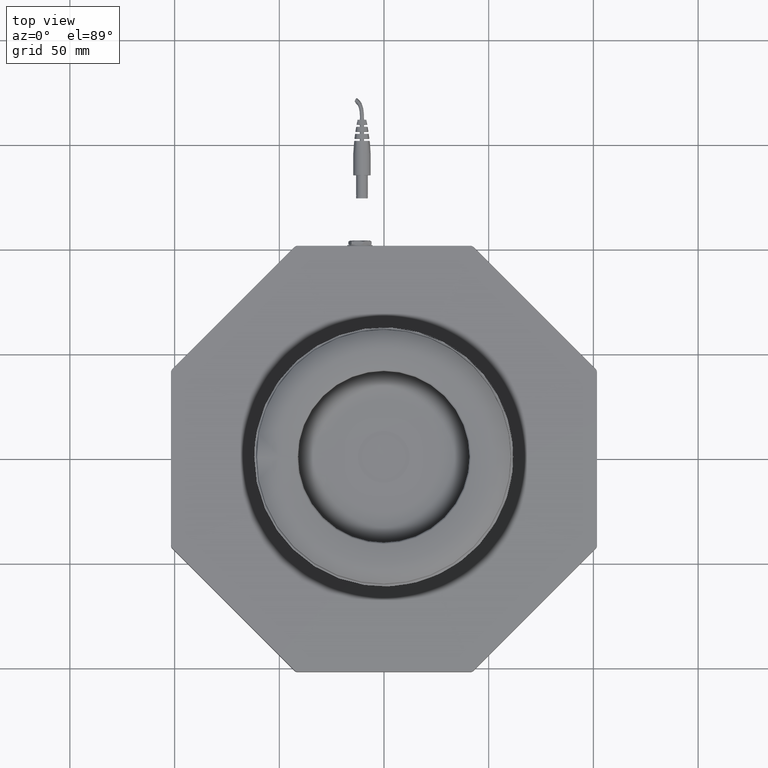
[diagram: clean part render]
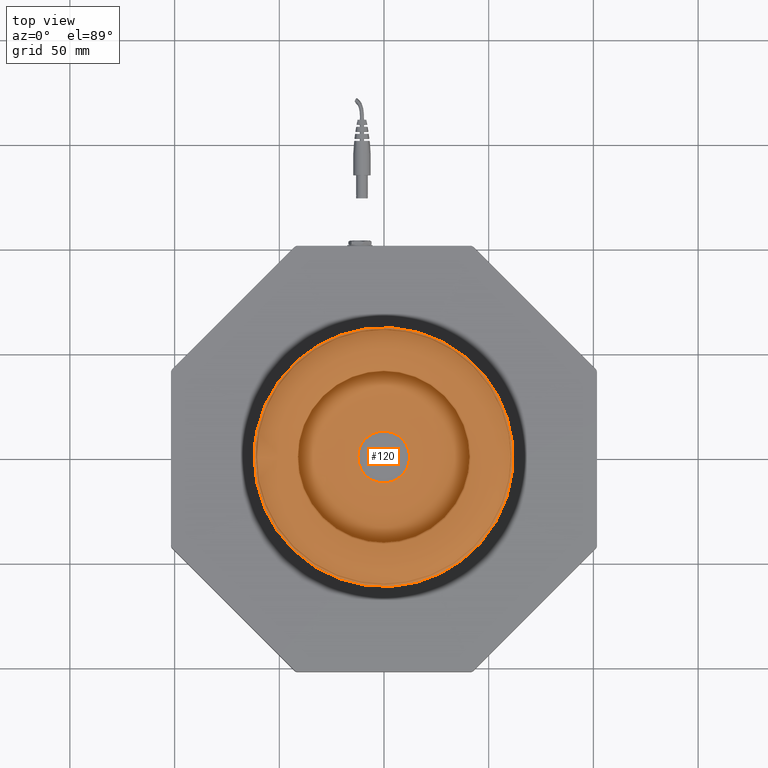
[diagram: same view with one face highlighted and labeled with its STEP entity id]
A machine part, top view. The second image highlights one B-rep face of the part: STEP entity #120.
In plain terms, the highlighted face is a freeform B-spline surface patch.
Its self-contained STEP definition (entity closure, byte-faithful):
#120=ADVANCED_FACE('',(#254),#2074,.T.);
#254=FACE_OUTER_BOUND('',#388,.T.);
#388=EDGE_LOOP('',(#558,#559,#560,#561));
#558=ORIENTED_EDGE('',*,*,#1189,.F.);
#559=ORIENTED_EDGE('',*,*,#1204,.T.);
#560=ORIENTED_EDGE('',*,*,#1189,.T.);
#561=ORIENTED_EDGE('',*,*,#1205,.F.);
#1189=EDGE_CURVE('',#1855,#1854,#1608,.T.);
#1204=EDGE_CURVE('',#1855,#1855,#1524,.T.);
#1205=EDGE_CURVE('',#1854,#1854,#1525,.T.);
#1524=(
BOUNDED_CURVE()
B_SPLINE_CURVE(2,(#3135,#3136,#3137,#3138,#3139,#3140,#3141,#3142,#3143),
 .UNSPECIFIED.,.T.,.F.)
B_SPLINE_CURVE_WITH_KNOTS((3,2,2,2,3),(0.,97.1617778100464,194.323555620093,
291.485333430139,388.647111240186),.UNSPECIFIED.)
CURVE()
GEOMETRIC_REPRESENTATION_ITEM()
RATIONAL_B_SPLINE_CURVE((1.,0.707106781186548,1.,0.707106781186548,1.,0.707106781186548,
1.,0.707106781186548,1.))
REPRESENTATION_ITEM('')
);
#1525=(
BOUNDED_CURVE()
B_SPLINE_CURVE(2,(#3144,#3145,#3146,#3147,#3148,#3149,#3150,#3151,#3152),
 .UNSPECIFIED.,.T.,.F.)
B_SPLINE_CURVE_WITH_KNOTS((3,2,2,2,3),(0.,97.1617778100464,194.323555620093,
291.485333430139,388.647111240186),.UNSPECIFIED.)
CURVE()
GEOMETRIC_REPRESENTATION_ITEM()
RATIONAL_B_SPLINE_CURVE((1.,0.707106781186548,1.,0.707106781186548,1.,0.707106781186548,
1.,0.707106781186548,1.))
REPRESENTATION_ITEM('')
);
#1608=B_SPLINE_CURVE_WITH_KNOTS('',5,(#2997,#2998,#2999,#3000,#3001,#3002,
#3003,#3004,#3005,#3006,#3007,#3008,#3009,#3010,#3011,#3012,#3013,#3014,
#3015,#3016,#3017,#3018,#3019,#3020,#3021,#3022,#3023,#3024,#3025,#3026,
#3027,#3028,#3029,#3030,#3031,#3032,#3033,#3034,#3035,#3036,#3037,#3038,
#3039,#3040,#3041,#3042,#3043,#3044,#3045,#3046,#3047,#3048,#3049,#3050,
#3051,#3052,#3053,#3054),.UNSPECIFIED.,.F.,.F.,(6,5,3,5,5,3,5,5,3,5,5,3,
5,6),(41.7298887529979,42.4798933293859,43.2652910832687,44.0506891833273,
53.8006891041568,54.5860872042185,55.3714854643474,73.3714836818382,74.1568817726652,
74.9422798727258,83.6922797935553,84.477677893618,85.2630763247087,113.513072943056),
 .UNSPECIFIED.);
#1854=VERTEX_POINT('',#2981);
#1855=VERTEX_POINT('',#2982);
#2074=(
BOUNDED_SURFACE()
B_SPLINE_SURFACE(2,5,((#2438,#2439,#2440,#2441,#2442,#2443,#2444,#2445,
#2446,#2447,#2448,#2449,#2450,#2451,#2452,#2453,#2454,#2455,#2456,#2457,
#2458,#2459,#2460,#2461,#2462,#2463,#2464,#2465,#2466,#2467,#2468,#2469,
#2470,#2471,#2472,#2473,#2474,#2475,#2476,#2477,#2478,#2479,#2480,#2481,
#2482,#2483,#2484,#2485,#2486,#2487,#2488,#2489,#2490,#2491,#2492,#2493,
#2494,#2495),(#2496,#2497,#2498,#2499,#2500,#2501,#2502,#2503,#2504,#2505,
#2506,#2507,#2508,#2509,#2510,#2511,#2512,#2513,#2514,#2515,#2516,#2517,
#2518,#2519,#2520,#2521,#2522,#2523,#2524,#2525,#2526,#2527,#2528,#2529,
#2530,#2531,#2532,#2533,#2534,#2535,#2536,#2537,#2538,#2539,#2540,#2541,
#2542,#2543,#2544,#2545,#2546,#2547,#2548,#2549,#2550,#2551,#2552,#2553),
(#2554,#2555,#2556,#2557,#2558,#2559,#2560,#2561,#2562,#2563,#2564,#2565,
#2566,#2567,#2568,#2569,#2570,#2571,#2572,#2573,#2574,#2575,#2576,#2577,
#2578,#2579,#2580,#2581,#2582,#2583,#2584,#2585,#2586,#2587,#2588,#2589,
#2590,#2591,#2592,#2593,#2594,#2595,#2596,#2597,#2598,#2599,#2600,#2601,
#2602,#2603,#2604,#2605,#2606,#2607,#2608,#2609,#2610,#2611),(#2612,#2613,
#2614,#2615,#2616,#2617,#2618,#2619,#2620,#2621,#2622,#2623,#2624,#2625,
#2626,#2627,#2628,#2629,#2630,#2631,#2632,#2633,#2634,#2635,#2636,#2637,
#2638,#2639,#2640,#2641,#2642,#2643,#2644,#2645,#2646,#2647,#2648,#2649,
#2650,#2651,#2652,#2653,#2654,#2655,#2656,#2657,#2658,#2659,#2660,#2661,
#2662,#2663,#2664,#2665,#2666,#2667,#2668,#2669),(#2670,#2671,#2672,#2673,
#2674,#2675,#2676,#2677,#2678,#2679,#2680,#2681,#2682,#2683,#2684,#2685,
#2686,#2687,#2688,#2689,#2690,#2691,#2692,#2693,#2694,#2695,#2696,#2697,
#2698,#2699,#2700,#2701,#2702,#2703,#2704,#2705,#2706,#2707,#2708,#2709,
#2710,#2711,#2712,#2713,#2714,#2715,#2716,#2717,#2718,#2719,#2720,#2721,
#2722,#2723,#2724,#2725,#2726,#2727),(#2728,#2729,#2730,#2731,#2732,#2733,
#2734,#2735,#2736,#2737,#2738,#2739,#2740,#2741,#2742,#2743,#2744,#2745,
#2746,#2747,#2748,#2749,#2750,#2751,#2752,#2753,#2754,#2755,#2756,#2757,
#2758,#2759,#2760,#2761,#2762,#2763,#2764,#2765,#2766,#2767,#2768,#2769,
#2770,#2771,#2772,#2773,#2774,#2775,#2776,#2777,#2778,#2779,#2780,#2781,
#2782,#2783,#2784,#2785),(#2786,#2787,#2788,#2789,#2790,#2791,#2792,#2793,
#2794,#2795,#2796,#2797,#2798,#2799,#2800,#2801,#2802,#2803,#2804,#2805,
#2806,#2807,#2808,#2809,#2810,#2811,#2812,#2813,#2814,#2815,#2816,#2817,
#2818,#2819,#2820,#2821,#2822,#2823,#2824,#2825,#2826,#2827,#2828,#2829,
#2830,#2831,#2832,#2833,#2834,#2835,#2836,#2837,#2838,#2839,#2840,#2841,
#2842,#2843),(#2844,#2845,#2846,#2847,#2848,#2849,#2850,#2851,#2852,#2853,
#2854,#2855,#2856,#2857,#2858,#2859,#2860,#2861,#2862,#2863,#2864,#2865,
#2866,#2867,#2868,#2869,#2870,#2871,#2872,#2873,#2874,#2875,#2876,#2877,
#2878,#2879,#2880,#2881,#2882,#2883,#2884,#2885,#2886,#2887,#2888,#2889,
#2890,#2891,#2892,#2893,#2894,#2895,#2896,#2897,#2898,#2899,#2900,#2901),
(#2902,#2903,#2904,#2905,#2906,#2907,#2908,#2909,#2910,#2911,#2912,#2913,
#2914,#2915,#2916,#2917,#2918,#2919,#2920,#2921,#2922,#2923,#2924,#2925,
#2926,#2927,#2928,#2929,#2930,#2931,#2932,#2933,#2934,#2935,#2936,#2937,
#2938,#2939,#2940,#2941,#2942,#2943,#2944,#2945,#2946,#2947,#2948,#2949,
#2950,#2951,#2952,#2953,#2954,#2955,#2956,#2957,#2958,#2959)),
 .UNSPECIFIED.,.T.,.F.,.F.)
B_SPLINE_SURFACE_WITH_KNOTS((3,2,2,2,3),(6,5,3,5,5,3,5,5,3,5,5,3,5,6),(0.,
97.1617778100464,194.323555620093,291.485333430139,388.647111240186),(41.7298887529979,
42.4798933293859,43.2652910832687,44.0506891833273,53.8006891041568,54.5860872042185,
55.3714854643474,73.3714836818382,74.1568817726652,74.9422798727258,83.6922797935553,
84.477677893618,85.2630763247087,113.513072943056),.UNSPECIFIED.)
GEOMETRIC_REPRESENTATION_ITEM()
RATIONAL_B_SPLINE_SURFACE(((1.,1.,1.,1.,1.,1.,1.,1.,1.,1.,1.,1.,1.,1.,1.,
1.,1.,1.,1.,1.,1.,1.,1.,1.,1.,1.,1.,1.,1.,1.,1.,1.,1.,1.,1.,1.,1.,1.,1.,
1.,1.,1.,1.,1.,1.,1.,1.,1.,1.,1.,1.,1.,1.,1.,1.,1.,1.,1.),(0.707106781186548,
0.707106781186548,0.707106781186548,0.707106781186548,0.707106781186548,
0.707106781186548,0.707106781186548,0.707106781186548,0.707106781186548,
0.707106781186548,0.707106781186548,0.707106781186548,0.707106781186548,
0.707106781186548,0.707106781186548,0.707106781186548,0.707106781186548,
0.707106781186548,0.707106781186548,0.707106781186548,0.707106781186548,
0.707106781186548,0.707106781186548,0.707106781186548,0.707106781186548,
0.707106781186548,0.707106781186548,0.707106781186548,0.707106781186548,
0.707106781186548,0.707106781186548,0.707106781186548,0.707106781186548,
0.707106781186548,0.707106781186548,0.707106781186548,0.707106781186548,
0.707106781186548,0.707106781186548,0.707106781186548,0.707106781186548,
0.707106781186548,0.707106781186548,0.707106781186548,0.707106781186548,
0.707106781186548,0.707106781186548,0.707106781186548,0.707106781186548,
0.707106781186548,0.707106781186548,0.707106781186548,0.707106781186548,
0.707106781186548,0.707106781186548,0.707106781186548,0.707106781186548,
0.707106781186548),(1.,1.,1.,1.,1.,1.,1.,1.,1.,1.,1.,1.,1.,1.,1.,1.,1.,
1.,1.,1.,1.,1.,1.,1.,1.,1.,1.,1.,1.,1.,1.,1.,1.,1.,1.,1.,1.,1.,1.,1.,1.,
1.,1.,1.,1.,1.,1.,1.,1.,1.,1.,1.,1.,1.,1.,1.,1.,1.),(0.707106781186548,
0.707106781186548,0.707106781186548,0.707106781186548,0.707106781186548,
0.707106781186548,0.707106781186548,0.707106781186548,0.707106781186548,
0.707106781186548,0.707106781186548,0.707106781186548,0.707106781186548,
0.707106781186548,0.707106781186548,0.707106781186548,0.707106781186548,
0.707106781186548,0.707106781186548,0.707106781186548,0.707106781186548,
0.707106781186548,0.707106781186548,0.707106781186548,0.707106781186548,
0.707106781186548,0.707106781186548,0.707106781186548,0.707106781186548,
0.707106781186548,0.707106781186548,0.707106781186548,0.707106781186548,
0.707106781186548,0.707106781186548,0.707106781186548,0.707106781186548,
0.707106781186548,0.707106781186548,0.707106781186548,0.707106781186548,
0.707106781186548,0.707106781186548,0.707106781186548,0.707106781186548,
0.707106781186548,0.707106781186548,0.707106781186548,0.707106781186548,
0.707106781186548,0.707106781186548,0.707106781186548,0.707106781186548,
0.707106781186548,0.707106781186548,0.707106781186548,0.707106781186548,
0.707106781186548),(1.,1.,1.,1.,1.,1.,1.,1.,1.,1.,1.,1.,1.,1.,1.,1.,1.,
1.,1.,1.,1.,1.,1.,1.,1.,1.,1.,1.,1.,1.,1.,1.,1.,1.,1.,1.,1.,1.,1.,1.,1.,
1.,1.,1.,1.,1.,1.,1.,1.,1.,1.,1.,1.,1.,1.,1.,1.,1.),(0.707106781186548,
0.707106781186548,0.707106781186548,0.707106781186548,0.707106781186548,
0.707106781186548,0.707106781186548,0.707106781186548,0.707106781186548,
0.707106781186548,0.707106781186548,0.707106781186548,0.707106781186548,
0.707106781186548,0.707106781186548,0.707106781186548,0.707106781186548,
0.707106781186548,0.707106781186548,0.707106781186548,0.707106781186548,
0.707106781186548,0.707106781186548,0.707106781186548,0.707106781186548,
0.707106781186548,0.707106781186548,0.707106781186548,0.707106781186548,
0.707106781186548,0.707106781186548,0.707106781186548,0.707106781186548,
0.707106781186548,0.707106781186548,0.707106781186548,0.707106781186548,
0.707106781186548,0.707106781186548,0.707106781186548,0.707106781186548,
0.707106781186548,0.707106781186548,0.707106781186548,0.707106781186548,
0.707106781186548,0.707106781186548,0.707106781186548,0.707106781186548,
0.707106781186548,0.707106781186548,0.707106781186548,0.707106781186548,
0.707106781186548,0.707106781186548,0.707106781186548,0.707106781186548,
0.707106781186548),(1.,1.,1.,1.,1.,1.,1.,1.,1.,1.,1.,1.,1.,1.,1.,1.,1.,
1.,1.,1.,1.,1.,1.,1.,1.,1.,1.,1.,1.,1.,1.,1.,1.,1.,1.,1.,1.,1.,1.,1.,1.,
1.,1.,1.,1.,1.,1.,1.,1.,1.,1.,1.,1.,1.,1.,1.,1.,1.),(0.707106781186548,
0.707106781186548,0.707106781186548,0.707106781186548,0.707106781186548,
0.707106781186548,0.707106781186548,0.707106781186548,0.707106781186548,
0.707106781186548,0.707106781186548,0.707106781186548,0.707106781186548,
0.707106781186548,0.707106781186548,0.707106781186548,0.707106781186548,
0.707106781186548,0.707106781186548,0.707106781186548,0.707106781186548,
0.707106781186548,0.707106781186548,0.707106781186548,0.707106781186548,
0.707106781186548,0.707106781186548,0.707106781186548,0.707106781186548,
0.707106781186548,0.707106781186548,0.707106781186548,0.707106781186548,
0.707106781186548,0.707106781186548,0.707106781186548,0.707106781186548,
0.707106781186548,0.707106781186548,0.707106781186548,0.707106781186548,
0.707106781186548,0.707106781186548,0.707106781186548,0.707106781186548,
0.707106781186548,0.707106781186548,0.707106781186548,0.707106781186548,
0.707106781186548,0.707106781186548,0.707106781186548,0.707106781186548,
0.707106781186548,0.707106781186548,0.707106781186548,0.707106781186548,
0.707106781186548),(1.,1.,1.,1.,1.,1.,1.,1.,1.,1.,1.,1.,1.,1.,1.,1.,1.,
1.,1.,1.,1.,1.,1.,1.,1.,1.,1.,1.,1.,1.,1.,1.,1.,1.,1.,1.,1.,1.,1.,1.,1.,
1.,1.,1.,1.,1.,1.,1.,1.,1.,1.,1.,1.,1.,1.,1.,1.,1.)))
REPRESENTATION_ITEM('')
SURFACE()
);
#2438=CARTESIAN_POINT('',(-61.9999993844936,-7.99013633034917E-15,62.99));
#2439=CARTESIAN_POINT('',(-61.849998469216,-9.30644450392038E-15,62.9900000150005));
#2440=CARTESIAN_POINT('',(-61.6999975539384,-1.06227526774916E-14,62.990000030001));
#2441=CARTESIAN_POINT('',(-61.5499966386608,-1.19390608510628E-14,62.9900000450015));
#2442=CARTESIAN_POINT('',(-61.3999957233831,-1.3255369024634E-14,62.9900000600021));
#2443=CARTESIAN_POINT('',(-61.2499948081055,-1.45716771982052E-14,62.9900000750026));
#2444=CARTESIAN_POINT('',(-61.2107248661584,-2.33860281681425E-14,62.9899999188658));
#2445=CARTESIAN_POINT('',(-61.1714546417266,-3.5778074697789E-14,62.9977093577106));
#2446=CARTESIAN_POINT('',(-61.1342053247009,-9.90269995028169E-15,63.0131377228147));
#2447=CARTESIAN_POINT('',(-61.0677674093085,-8.30810120924955E-14,63.0577725397341));
#2448=CARTESIAN_POINT('',(-61.0231326009246,1.16962148595523E-14,63.1242104654875));
#2449=CARTESIAN_POINT('',(-61.0077042363846,-4.75259453819578E-14,63.1614598055983));
#2450=CARTESIAN_POINT('',(-60.9999948049924,-2.63078801859851E-14,63.2007300532948));
#2451=CARTESIAN_POINT('',(-60.9999948945572,2.3037127760972E-15,63.2400000158341));
#2452=CARTESIAN_POINT('',(-60.9999947858597,1.29340982368831E-15,65.19));
#2453=CARTESIAN_POINT('',(-60.9999946771621,2.83106871279415E-16,67.1399999841659));
#2454=CARTESIAN_POINT('',(-60.9999945684646,-7.27196081129478E-16,69.0899999683318));
#2455=CARTESIAN_POINT('',(-60.9999944597671,-1.73749903353837E-15,71.0399999524977));
#2456=CARTESIAN_POINT('',(-60.9999943510696,-2.74780198594726E-15,72.9899999366636));
#2457=CARTESIAN_POINT('',(-60.9999952786248,-9.8900730695318E-15,73.1470797868183));
#2458=CARTESIAN_POINT('',(-60.9691575530589,3.43191413817137E-14,73.3041607776047));
#2459=CARTESIAN_POINT('',(-60.9074440948928,-6.12681276287833E-14,73.4531581380489));
#2460=CARTESIAN_POINT('',(-60.7289048038225,8.37375424729026E-14,73.7189099267114));
#2461=CARTESIAN_POINT('',(-60.463153028492,-6.15204806272868E-14,73.8974492238227));
#2462=CARTESIAN_POINT('',(-60.3141556435684,4.5639350023397E-14,73.959162688494));
#2463=CARTESIAN_POINT('',(-60.1570746289596,-7.42981800049252E-15,73.9900004040454));
#2464=CARTESIAN_POINT('',(-59.9999947599247,1.5709655798446E-14,73.9899996999897));
#2465=CARTESIAN_POINT('',(-56.3999951164265,1.29646293700603E-14,73.9899996999897));
#2466=CARTESIAN_POINT('',(-52.7999954729284,1.02196029416746E-14,73.9899996999897));
#2467=CARTESIAN_POINT('',(-49.1999958294302,7.47457651328887E-15,73.9899996999897));
#2468=CARTESIAN_POINT('',(-45.5999961859321,4.72955008490317E-15,73.9899996999897));
#2469=CARTESIAN_POINT('',(-41.9999965424339,1.98452365651747E-15,73.9899996999897));
#2470=CARTESIAN_POINT('',(-41.8429167072585,-3.87408991417717E-15,73.9900003774556));
#2471=CARTESIAN_POINT('',(-41.6858357317381,-3.69490326379161E-14,73.9591626485847));
#2472=CARTESIAN_POINT('',(-41.5368383858823,1.48717628604316E-14,73.8974491853364));
#2473=CARTESIAN_POINT('',(-41.2710866485964,-6.2645416554524E-14,73.7189098980686));
#2474=CARTESIAN_POINT('',(-41.0925473767681,2.52927199579988E-14,73.4531581380492));
#2475=CARTESIAN_POINT('',(-41.0308339186023,-3.15043735957984E-14,73.3041607776053));
#2476=CARTESIAN_POINT('',(-40.9999961930363,9.98085493460106E-16,73.147079786819));
#2477=CARTESIAN_POINT('',(-40.9999969302041,6.93889390390723E-16,72.9899999366636));
#2478=CARTESIAN_POINT('',(-40.9999968215065,1.76247905159244E-16,71.2399999524977));
#2479=CARTESIAN_POINT('',(-40.999996712809,-3.41393580072236E-16,69.4899999683318));
#2480=CARTESIAN_POINT('',(-40.9999966041114,-8.59035065303715E-16,67.7399999841659));
#2481=CARTESIAN_POINT('',(-40.9999964954139,-1.37667655053519E-15,65.99));
#2482=CARTESIAN_POINT('',(-40.9999963867163,-1.89431803576667E-15,64.2400000158341));
#2483=CARTESIAN_POINT('',(-40.9999966666685,-1.14342686739503E-14,64.2007300532956));
#2484=CARTESIAN_POINT('',(-40.9922872352772,-6.90542759282497E-15,64.161459805599));
#2485=CARTESIAN_POINT('',(-40.9768588707357,2.10110591121791E-15,64.1242104654878));
#2486=CARTESIAN_POINT('',(-40.9322240431101,-3.05392233225395E-14,64.0577725110912));
#2487=CARTESIAN_POINT('',(-40.8657860896737,1.07764012959657E-16,64.0131376843284));
#2488=CARTESIAN_POINT('',(-40.82853673358,-5.96464500116638E-15,63.9977093178014));
#2489=CARTESIAN_POINT('',(-40.7892664700598,-9.53659818589386E-15,63.989999892276));
#2490=CARTESIAN_POINT('',(-40.7499964942531,1.06442632485937E-14,63.9900000750026));
#2491=CARTESIAN_POINT('',(-35.0999971705837,8.78186412478499E-15,63.9900000600021));
#2492=CARTESIAN_POINT('',(-29.4499978469143,6.91946500097629E-15,63.9900000450015));
#2493=CARTESIAN_POINT('',(-23.7999985232448,5.05706587716759E-15,63.990000030001));
#2494=CARTESIAN_POINT('',(-18.1499991995754,3.19466675335889E-15,63.9900000150005));
#2495=CARTESIAN_POINT('',(-12.499999875906,1.33226762955019E-15,63.99));
#2496=CARTESIAN_POINT('',(-61.9999993844936,-61.8534460594396,62.99));
#2497=CARTESIAN_POINT('',(-61.849998469216,-61.7034455491875,62.9900000150005));
#2498=CARTESIAN_POINT('',(-61.6999975539384,-61.5534450389354,62.990000030001));
#2499=CARTESIAN_POINT('',(-61.5499966386607,-61.4034445286834,62.9900000450015));
#2500=CARTESIAN_POINT('',(-61.3999957233831,-61.2534440184313,62.9900000600021));
#2501=CARTESIAN_POINT('',(-61.2499948081055,-61.1034435081792,62.9900000750026));
#2502=CARTESIAN_POINT('',(-61.2107248661584,-61.064173672639,62.9899999188658));
#2503=CARTESIAN_POINT('',(-61.1714546417265,-61.0248856378659,62.9977093577106));
#2504=CARTESIAN_POINT('',(-61.1342053247009,-60.9876005666075,63.0131377228147));
#2505=CARTESIAN_POINT('',(-61.0677674093084,-60.9210591013345,63.0577725397341));
#2506=CARTESIAN_POINT('',(-61.0231326009246,-60.8762700147577,63.1242104654875));
#2507=CARTESIAN_POINT('',(-61.0077042363846,-60.8607551261045,63.1614598055983));
#2508=CARTESIAN_POINT('',(-60.9999948049923,-60.8529544532573,63.2007300532948));
#2509=CARTESIAN_POINT('',(-60.9999948945572,-60.8528632812113,63.2400000158341));
#2510=CARTESIAN_POINT('',(-60.9999947858597,-60.8483314610542,65.19));
#2511=CARTESIAN_POINT('',(-60.9999946771621,-60.8437996408972,67.1399999841659));
#2512=CARTESIAN_POINT('',(-60.9999945684646,-60.8392678207402,69.0899999683318));
#2513=CARTESIAN_POINT('',(-60.9999944597671,-60.8347360005831,71.0399999524977));
#2514=CARTESIAN_POINT('',(-60.9999943510696,-60.8302041804261,72.9899999366636));
#2515=CARTESIAN_POINT('',(-60.9999952786248,-60.8298400615363,73.1470797868183));
#2516=CARTESIAN_POINT('',(-60.9691575530589,-60.7986373701509,73.3041607776047));
#2517=CARTESIAN_POINT('',(-60.9074440948927,-60.7365778155319,73.4531581380489));
#2518=CARTESIAN_POINT('',(-60.7289048038225,-60.5574214114911,73.7189099267114));
#2519=CARTESIAN_POINT('',(-60.463153028492,-60.29125543657,73.8974492238227));
#2520=CARTESIAN_POINT('',(-60.3141556435684,-60.1421150347058,73.959162688494));
#2521=CARTESIAN_POINT('',(-60.1570746289596,-59.9849627788251,73.9900004040454));
#2522=CARTESIAN_POINT('',(-59.9999947599247,-59.8278833356027,73.9899996999897));
#2523=CARTESIAN_POINT('',(-56.3999951164266,-56.2278934134938,73.9899996999897));
#2524=CARTESIAN_POINT('',(-52.7999954729284,-52.6279034913848,73.9899996999897));
#2525=CARTESIAN_POINT('',(-49.1999958294302,-49.0279135692759,73.9899996999897));
#2526=CARTESIAN_POINT('',(-45.5999961859321,-45.427923647167,73.9899996999897));
#2527=CARTESIAN_POINT('',(-41.9999965424339,-41.8279337250581,73.9899996999897));
#2528=CARTESIAN_POINT('',(-41.8429167072585,-41.6708543124846,73.9900003774556));
#2529=CARTESIAN_POINT('',(-41.685835731738,-41.5138454266257,73.9591626485847));
#2530=CARTESIAN_POINT('',(-41.5368383858823,-41.3649919024079,73.8974491853364));
#2531=CARTESIAN_POINT('',(-41.2710866485963,-41.0996557999547,73.7189098980686));
#2532=CARTESIAN_POINT('',(-41.0925473767681,-40.9217346052801,73.4531581380492));
#2533=CARTESIAN_POINT('',(-41.0308339186022,-40.8603675768677,73.3041607776053));
#2534=CARTESIAN_POINT('',(-40.9999961930363,-40.8298949836688,73.147079786819));
#2535=CARTESIAN_POINT('',(-40.9999969302041,-40.8302607672771,72.9899999366636));
#2536=CARTESIAN_POINT('',(-40.9999968215065,-40.8343275791169,71.2399999524977));
#2537=CARTESIAN_POINT('',(-40.999996712809,-40.8383943909567,69.4899999683318));
#2538=CARTESIAN_POINT('',(-40.9999966041114,-40.8424612027965,67.7399999841659));
#2539=CARTESIAN_POINT('',(-40.9999964954139,-40.8465280146363,65.99));
#2540=CARTESIAN_POINT('',(-40.9999963867163,-40.8505948264761,64.2400000158341));
#2541=CARTESIAN_POINT('',(-40.9999966666685,-40.8506863680382,64.2007300532956));
#2542=CARTESIAN_POINT('',(-40.9922872352772,-40.8430682197386,64.161459805599));
#2543=CARTESIAN_POINT('',(-40.9768588707357,-40.8277264626354,64.1242104654878));
#2544=CARTESIAN_POINT('',(-40.93222404311,-40.7832461543318,64.0577725110912));
#2545=CARTESIAN_POINT('',(-40.8657860896737,-40.7169121096151,64.0131376843284));
#2546=CARTESIAN_POINT('',(-40.82853673358,-40.6796987089326,63.9977093178014));
#2547=CARTESIAN_POINT('',(-40.7892664700598,-40.6404464678123,63.989999892276));
#2548=CARTESIAN_POINT('',(-40.7499964942531,-40.601176597625,63.9900000750026));
#2549=CARTESIAN_POINT('',(-35.0999971705837,-34.9511925311705,63.9900000600021));
#2550=CARTESIAN_POINT('',(-29.4499978469143,-29.301208464716,63.9900000450015));
#2551=CARTESIAN_POINT('',(-23.7999985232448,-23.6512243982614,63.990000030001));
#2552=CARTESIAN_POINT('',(-18.1499991995754,-18.0012403318069,63.9900000150005));
#2553=CARTESIAN_POINT('',(-12.499999875906,-12.3512562653524,63.99));
#2554=CARTESIAN_POINT('',(-0.146720353244266,-61.8534460594396,63.1337446013394));
#2555=CARTESIAN_POINT('',(-0.146719543159425,-61.7034455491875,63.133396021962));
#2556=CARTESIAN_POINT('',(-0.146718733074584,-61.5534450389354,63.1330474425847));
#2557=CARTESIAN_POINT('',(-0.146717922989743,-61.4034445286834,63.1326988632074));
#2558=CARTESIAN_POINT('',(-0.146717112904902,-61.2534440184313,63.13235028383));
#2559=CARTESIAN_POINT('',(-0.146716302820061,-61.1034435081792,63.1320017044527));
#2560=CARTESIAN_POINT('',(-0.146716090369468,-61.064173672639,63.1319102870005));
#2561=CARTESIAN_POINT('',(-0.146733794617791,-61.0248856378659,63.1395284222356));
#2562=CARTESIAN_POINT('',(-0.14676944816645,-60.9876005666075,63.1548701385263));
#2563=CARTESIAN_POINT('',(-0.146872818359406,-60.9210591013344,63.1993503161005));
#2564=CARTESIAN_POINT('',(-0.147026975604527,-60.8762700147577,63.2656841540495));
#2565=CARTESIAN_POINT('',(-0.14711345782154,-60.8607551261044,63.3028974382633));
#2566=CARTESIAN_POINT('',(-0.147204678211603,-60.8529544532573,63.3421495575501));
#2567=CARTESIAN_POINT('',(-0.147295939576295,-60.8528632812113,63.3814193082097));
#2568=CARTESIAN_POINT('',(-0.151827638798136,-60.8483314610542,65.3314087606312));
#2569=CARTESIAN_POINT('',(-0.156359338019978,-60.8437996408972,67.2813982130528));
#2570=CARTESIAN_POINT('',(-0.160891037241819,-60.8392678207402,69.2313876654743));
#2571=CARTESIAN_POINT('',(-0.16542273646366,-60.8347360005832,71.1813771178958));
#2572=CARTESIAN_POINT('',(-0.169954435685502,-60.8302041804261,73.1313665703174));
#2573=CARTESIAN_POINT('',(-0.170319481147215,-60.8298400615363,73.2884455742763));
#2574=CARTESIAN_POINT('',(-0.170684362707428,-60.798637370151,73.4454540514241));
#2575=CARTESIAN_POINT('',(-0.171030291575625,-60.7365778155318,73.59430718828));
#2576=CARTESIAN_POINT('',(-0.171646920754608,-60.5574214114912,73.8596426255908));
#2577=CARTESIAN_POINT('',(-0.172060401594365,-60.2912554365699,74.0375633650567));
#2578=CARTESIAN_POINT('',(-0.172203015798262,-60.1421150347058,74.0989302342029));
#2579=CARTESIAN_POINT('',(-0.172273832698361,-59.9849627788251,74.1294027350443));
#2580=CARTESIAN_POINT('',(-0.172272982710729,-59.8278833356027,74.1290369854918));
#2581=CARTESIAN_POINT('',(-0.172253539958485,-56.2278934134938,74.1206707723033));
#2582=CARTESIAN_POINT('',(-0.172234097206241,-52.6279034913849,74.1123045591147));
#2583=CARTESIAN_POINT('',(-0.172214654453997,-49.0279135692759,74.1039383459262));
#2584=CARTESIAN_POINT('',(-0.172195211701753,-45.427923647167,74.0955721327376));
#2585=CARTESIAN_POINT('',(-0.172175768949509,-41.8279337250581,74.0872059195491));
#2586=CARTESIAN_POINT('',(-0.172174922172615,-41.6708543124846,74.0868415515894));
#2587=CARTESIAN_POINT('',(-0.172102408526381,-41.5138454266257,74.0556389411939));
#2588=CARTESIAN_POINT('',(-0.171958184926423,-41.3649919024079,73.9935795491112));
#2589=CARTESIAN_POINT('',(-0.171541833583727,-41.0996557999547,73.814423632784));
#2590=CARTESIAN_POINT('',(-0.170923275974121,-40.9217346052802,73.5482583919833));
#2591=CARTESIAN_POINT('',(-0.170576680505997,-40.8603675768677,73.3991184173506));
#2592=CARTESIAN_POINT('',(-0.17021146585124,-40.8298949836688,73.2419666096408));
#2593=CARTESIAN_POINT('',(-0.169846420398508,-40.8302607672771,73.0848876095498));
#2594=CARTESIAN_POINT('',(-0.165779510843104,-40.8343275791169,71.3348970764701));
#2595=CARTESIAN_POINT('',(-0.1617126012877,-40.8383943909567,69.5849065433903));
#2596=CARTESIAN_POINT('',(-0.157645691732296,-40.8424612027965,67.8349160103106));
#2597=CARTESIAN_POINT('',(-0.153578782176892,-40.8465280146363,66.0849254772308));
#2598=CARTESIAN_POINT('',(-0.149511872621488,-40.8505948264761,64.334934944151));
#2599=CARTESIAN_POINT('',(-0.149420611258813,-40.8506863680382,64.295665194351));
#2600=CARTESIAN_POINT('',(-0.14932930759512,-40.8430682197386,64.2563772424234));
#2601=CARTESIAN_POINT('',(-0.149242658728112,-40.8277264626354,64.2190922487651));
#2602=CARTESIAN_POINT('',(-0.149088019292158,-40.7832461543317,64.1525509241508));
#2603=CARTESIAN_POINT('',(-0.148983931444937,-40.7169121096151,64.1077619400787));
#2604=CARTESIAN_POINT('',(-0.148947875543161,-40.6796987089326,64.0922470912975));
#2605=CARTESIAN_POINT('',(-0.148929747147054,-40.6404464678123,64.0844464453453));
#2606=CARTESIAN_POINT('',(-0.148929535483808,-40.601176597625,64.0843553666758));
#2607=CARTESIAN_POINT('',(-0.148899021130087,-34.9511925311705,64.0712250451371));
#2608=CARTESIAN_POINT('',(-0.148868506776365,-29.301208464716,64.0580947235983));
#2609=CARTESIAN_POINT('',(-0.148837992422644,-23.6512243982614,64.0449644020596));
#2610=CARTESIAN_POINT('',(-0.148807478068923,-18.0012403318069,64.0318340805209));
#2611=CARTESIAN_POINT('',(-0.148776963715202,-12.3512562653524,64.0187037589821));
#2612=CARTESIAN_POINT('',(61.706558678005,-61.8534460594396,63.2774892026787));
#2613=CARTESIAN_POINT('',(61.5565593828971,-61.7034455491875,63.2767920289236));
#2614=CARTESIAN_POINT('',(61.4065600877892,-61.5534450389354,63.2760948551684));
#2615=CARTESIAN_POINT('',(61.2565607926813,-61.4034445286833,63.2753976814132));
#2616=CARTESIAN_POINT('',(61.1065614975733,-61.2534440184313,63.274700507658));
#2617=CARTESIAN_POINT('',(60.9565622024654,-61.1034435081792,63.2740033339028));
#2618=CARTESIAN_POINT('',(60.9172926854195,-61.064173672639,63.2738206551351));
#2619=CARTESIAN_POINT('',(60.8779870524909,-61.0248856378659,63.2813474867606));
#2620=CARTESIAN_POINT('',(60.840666428368,-60.9876005666075,63.2966025542379));
#2621=CARTESIAN_POINT('',(60.7740217725896,-60.9210591013344,63.3409280924668));
#2622=CARTESIAN_POINT('',(60.7290786497156,-60.8762700147577,63.4071578426115));
#2623=CARTESIAN_POINT('',(60.7134773207415,-60.8607551261044,63.4443350709282));
#2624=CARTESIAN_POINT('',(60.7055854485691,-60.8529544532573,63.4835690618054));
#2625=CARTESIAN_POINT('',(60.7054030154046,-60.8528632812113,63.5228386005853));
#2626=CARTESIAN_POINT('',(60.6963395082634,-60.8483314610542,65.4728175212624));
#2627=CARTESIAN_POINT('',(60.6872760011222,-60.8437996408972,67.4227964419396));
#2628=CARTESIAN_POINT('',(60.678212493981,-60.8392678207402,69.3727753626168));
#2629=CARTESIAN_POINT('',(60.6691489868398,-60.8347360005831,71.322754283294));
#2630=CARTESIAN_POINT('',(60.6600854796986,-60.8302041804261,73.2727332039711));
#2631=CARTESIAN_POINT('',(60.6593563163303,-60.8298400615363,73.4298113617343));
#2632=CARTESIAN_POINT('',(60.6277888276441,-60.798637370151,73.5867473252435));
#2633=CARTESIAN_POINT('',(60.5653835117415,-60.7365778155317,73.7354562385112));
#2634=CARTESIAN_POINT('',(60.3856109623133,-60.5574214114912,74.0003753244702));
#2635=CARTESIAN_POINT('',(60.1190322253032,-60.2912554365699,74.1776775062907));
#2636=CARTESIAN_POINT('',(59.9697496119719,-60.1421150347059,74.2386977799119));
#2637=CARTESIAN_POINT('',(59.8125269635629,-59.9849627788251,74.2688050660431));
#2638=CARTESIAN_POINT('',(59.6554487945033,-59.8278833356027,74.2680742709939));
#2639=CARTESIAN_POINT('',(56.0554880365096,-56.2278934134938,74.2513418446168));
#2640=CARTESIAN_POINT('',(52.4555272785159,-52.6279034913849,74.2346094182398));
#2641=CARTESIAN_POINT('',(48.8555665205222,-49.0279135692759,74.2178769918627));
#2642=CARTESIAN_POINT('',(45.2556057625286,-45.427923647167,74.2011445654856));
#2643=CARTESIAN_POINT('',(41.6556450045349,-41.8279337250581,74.1844121391085));
#2644=CARTESIAN_POINT('',(41.4985668629133,-41.6708543124846,74.1836827257232));
#2645=CARTESIAN_POINT('',(41.3416309146853,-41.5138454266256,74.152115233803));
#2646=CARTESIAN_POINT('',(41.1929220160295,-41.3649919024079,74.089709912886));
#2647=CARTESIAN_POINT('',(40.9280029814289,-41.0996557999546,73.9099373674993));
#2648=CARTESIAN_POINT('',(40.7507008248199,-40.9217346052802,73.6433586459174));
#2649=CARTESIAN_POINT('',(40.6896805575902,-40.8603675768677,73.4940760570959));
#2650=CARTESIAN_POINT('',(40.6595732613339,-40.8298949836688,73.3368534324625));
#2651=CARTESIAN_POINT('',(40.6603040894071,-40.8302607672771,73.1797752824361));
#2652=CARTESIAN_POINT('',(40.6684377998203,-40.8343275791169,71.4297942004424));
#2653=CARTESIAN_POINT('',(40.6765715102336,-40.8383943909567,69.6798131184488));
#2654=CARTESIAN_POINT('',(40.6847052206469,-40.8424612027965,67.9298320364552));
#2655=CARTESIAN_POINT('',(40.6928389310601,-40.8465280146363,66.1798509544616));
#2656=CARTESIAN_POINT('',(40.7009726414733,-40.8505948264761,64.429869872468));
#2657=CARTESIAN_POINT('',(40.7011554441509,-40.8506863680381,64.3906003354064));
#2658=CARTESIAN_POINT('',(40.693628620087,-40.8430682197386,64.3512946792479));
#2659=CARTESIAN_POINT('',(40.6783735532795,-40.8277264626354,64.3139740320424));
#2660=CARTESIAN_POINT('',(40.6340480045257,-40.7832461543317,64.2473293372104));
#2661=CARTESIAN_POINT('',(40.5678182267838,-40.7169121096151,64.2023861958291));
#2662=CARTESIAN_POINT('',(40.5306409824936,-40.6796987089326,64.1867848647936));
#2663=CARTESIAN_POINT('',(40.4914069757657,-40.6404464678123,64.1788929984146));
#2664=CARTESIAN_POINT('',(40.4521374232855,-40.6011765976251,64.1787106583491));
#2665=CARTESIAN_POINT('',(34.8021991283235,-34.9511925311705,64.1524500302721));
#2666=CARTESIAN_POINT('',(29.1522608333615,-29.301208464716,64.1261894021952));
#2667=CARTESIAN_POINT('',(23.5023225383995,-23.6512243982614,64.0999287741182));
#2668=CARTESIAN_POINT('',(17.8523842434376,-18.0012403318069,64.0736681460412));
#2669=CARTESIAN_POINT('',(12.2024459484756,-12.3512562653524,64.0474075179642));
#2670=CARTESIAN_POINT('',(61.7065586780051,4.15273857056558E-16,63.2774892026787));
#2671=CARTESIAN_POINT('',(61.5565593828971,1.74995179510283E-15,63.2767920289236));
#2672=CARTESIAN_POINT('',(61.4065600877892,3.0846297331491E-15,63.2760948551684));
#2673=CARTESIAN_POINT('',(61.2565607926813,4.41930767119536E-15,63.2753976814132));
#2674=CARTESIAN_POINT('',(61.1065614975733,5.75398560924163E-15,63.274700507658));
#2675=CARTESIAN_POINT('',(60.9565622024654,7.0886635472879E-15,63.2740033339028));
#2676=CARTESIAN_POINT('',(60.9172926854195,1.5907823685065E-14,63.2738206551351));
#2677=CARTESIAN_POINT('',(60.8779870524909,2.83046816113145E-14,63.2813474867606));
#2678=CARTESIAN_POINT('',(60.840666428368,2.43387296812437E-15,63.2966025542379));
#2679=CARTESIAN_POINT('',(60.7740217725895,7.56203340895839E-14,63.3409280924668));
#2680=CARTESIAN_POINT('',(60.7290786497156,-1.91514077813126E-14,63.4071578426115));
#2681=CARTESIAN_POINT('',(60.7134773207415,4.00726524860703E-14,63.4443350709282));
#2682=CARTESIAN_POINT('',(60.7055854485691,1.8855542597001E-14,63.4835690618054));
#2683=CARTESIAN_POINT('',(60.7054030154046,-9.75603919972589E-15,63.5228386005853));
#2684=CARTESIAN_POINT('',(60.6963395082634,-8.74518125941203E-15,65.4728175212624));
#2685=CARTESIAN_POINT('',(60.6872760011222,-7.73432331909818E-15,67.4227964419396));
#2686=CARTESIAN_POINT('',(60.678212493981,-6.72346537878432E-15,69.3727753626168));
#2687=CARTESIAN_POINT('',(60.6691489868398,-5.71260743847047E-15,71.322754283294));
#2688=CARTESIAN_POINT('',(60.6600854796986,-4.70174949815662E-15,73.2727332039711));
#2689=CARTESIAN_POINT('',(60.6593563163303,2.44056617713121E-15,73.4298113617343));
#2690=CARTESIAN_POINT('',(60.6277888276441,-4.17648270465013E-14,73.5867473252435));
#2691=CARTESIAN_POINT('',(60.5653835117414,5.38300420674878E-14,73.7354562385112));
#2692=CARTESIAN_POINT('',(60.3856109623134,-9.11536877025226E-14,74.0003753244702));
#2693=CARTESIAN_POINT('',(60.1190322253032,5.41369313285897E-14,74.1776775062907));
#2694=CARTESIAN_POINT('',(59.969749611972,-5.30046348905174E-14,74.2386977799119));
#2695=CARTESIAN_POINT('',(59.8125269635629,8.37787340863999E-17,74.2688050660431));
#2696=CARTESIAN_POINT('',(59.6554487945033,-2.30364583811167E-14,74.2680742709939));
#2697=CARTESIAN_POINT('',(56.0554880365096,-1.98505603392236E-14,74.2513418446168));
#2698=CARTESIAN_POINT('',(52.4555272785159,-1.66646622973306E-14,74.2346094182398));
#2699=CARTESIAN_POINT('',(48.8555665205222,-1.34787642554376E-14,74.2178769918627));
#2700=CARTESIAN_POINT('',(45.2556057625286,-1.02928662135445E-14,74.2011445654856));
#2701=CARTESIAN_POINT('',(41.6556450045349,-7.10696817165147E-15,74.1844121391085));
#2702=CARTESIAN_POINT('',(41.4985668629133,-1.22911792097482E-15,74.1836827257232));
#2703=CARTESIAN_POINT('',(41.3416309146852,3.18650528457146E-14,74.152115233803));
#2704=CARTESIAN_POINT('',(41.1929220160295,-1.99375133534356E-14,74.089709912886));
#2705=CARTESIAN_POINT('',(40.9280029814288,5.76121603623767E-14,73.9099373674993));
#2706=CARTESIAN_POINT('',(40.7507008248199,-3.03041870879902E-14,73.6433586459174));
#2707=CARTESIAN_POINT('',(40.6896805575902,2.65004217592989E-14,73.4940760570959));
#2708=CARTESIAN_POINT('',(40.6595732613339,-5.99830551358737E-15,73.3368534324625));
#2709=CARTESIAN_POINT('',(40.6603040894071,-5.69415420609048E-15,73.1797752824361));
#2710=CARTESIAN_POINT('',(40.6684377998203,-5.17701076166924E-15,71.4297942004424));
#2711=CARTESIAN_POINT('',(40.6765715102336,-4.659867317248E-15,69.6798131184488));
#2712=CARTESIAN_POINT('',(40.6847052206469,-4.14272387282675E-15,67.9298320364552));
#2713=CARTESIAN_POINT('',(40.6928389310601,-3.62558042840551E-15,66.1798509544616));
#2714=CARTESIAN_POINT('',(40.7009726414733,-3.10843698398427E-15,64.429869872468));
#2715=CARTESIAN_POINT('',(40.7011554441509,6.4315024435913E-15,64.3906003354064));
#2716=CARTESIAN_POINT('',(40.693628620087,1.90359431655898E-15,64.3512946792479));
#2717=CARTESIAN_POINT('',(40.6783735532795,-7.10106036411093E-15,64.3139740320424));
#2718=CARTESIAN_POINT('',(40.6340480045257,2.55447161363654E-14,64.2473293372104));
#2719=CARTESIAN_POINT('',(40.5678182267838,-5.09414762158008E-15,64.2023861958291));
#2720=CARTESIAN_POINT('',(40.5306409824936,9.82818719749086E-16,64.1867848647936));
#2721=CARTESIAN_POINT('',(40.4914069757657,4.5595789176213E-15,64.1788929984146));
#2722=CARTESIAN_POINT('',(40.4521374232855,-1.56164733447835E-14,64.1787106583491));
#2723=CARTESIAN_POINT('',(34.8021991283235,-1.30621507307531E-14,64.1524500302721));
#2724=CARTESIAN_POINT('',(29.1522608333615,-1.05078281167227E-14,64.1261894021952));
#2725=CARTESIAN_POINT('',(23.5023225383995,-7.95350550269225E-15,64.0999287741182));
#2726=CARTESIAN_POINT('',(17.8523842434376,-5.39918288866184E-15,64.0736681460412));
#2727=CARTESIAN_POINT('',(12.2024459484756,-2.84486027463143E-15,64.0474075179642));
#2728=CARTESIAN_POINT('',(61.706558678005,61.8534460594396,63.2774892026787));
#2729=CARTESIAN_POINT('',(61.5565593828971,61.7034455491875,63.2767920289236));
#2730=CARTESIAN_POINT('',(61.4065600877892,61.5534450389354,63.2760948551684));
#2731=CARTESIAN_POINT('',(61.2565607926812,61.4034445286834,63.2753976814132));
#2732=CARTESIAN_POINT('',(61.1065614975733,61.2534440184313,63.274700507658));
#2733=CARTESIAN_POINT('',(60.9565622024654,61.1034435081792,63.2740033339028));
#2734=CARTESIAN_POINT('',(60.9172926854194,61.064173672639,63.2738206551351));
#2735=CARTESIAN_POINT('',(60.8779870524909,61.0248856378659,63.2813474867606));
#2736=CARTESIAN_POINT('',(60.840666428368,60.9876005666075,63.2966025542379));
#2737=CARTESIAN_POINT('',(60.7740217725895,60.9210591013345,63.3409280924668));
#2738=CARTESIAN_POINT('',(60.7290786497156,60.8762700147577,63.4071578426115));
#2739=CARTESIAN_POINT('',(60.7134773207414,60.8607551261045,63.4443350709282));
#2740=CARTESIAN_POINT('',(60.7055854485691,60.8529544532573,63.4835690618054));
#2741=CARTESIAN_POINT('',(60.7054030154046,60.8528632812112,63.5228386005853));
#2742=CARTESIAN_POINT('',(60.6963395082634,60.8483314610542,65.4728175212624));
#2743=CARTESIAN_POINT('',(60.6872760011222,60.8437996408972,67.4227964419396));
#2744=CARTESIAN_POINT('',(60.678212493981,60.8392678207402,69.3727753626168));
#2745=CARTESIAN_POINT('',(60.6691489868398,60.8347360005831,71.322754283294));
#2746=CARTESIAN_POINT('',(60.6600854796986,60.8302041804261,73.2727332039711));
#2747=CARTESIAN_POINT('',(60.6593563163303,60.8298400615363,73.4298113617343));
#2748=CARTESIAN_POINT('',(60.6277888276441,60.7986373701509,73.5867473252435));
#2749=CARTESIAN_POINT('',(60.5653835117414,60.7365778155318,73.7354562385112));
#2750=CARTESIAN_POINT('',(60.3856109623135,60.5574214114911,74.0003753244702));
#2751=CARTESIAN_POINT('',(60.1190322253031,60.29125543657,74.1776775062907));
#2752=CARTESIAN_POINT('',(59.969749611972,60.1421150347058,74.2386977799119));
#2753=CARTESIAN_POINT('',(59.8125269635629,59.9849627788251,74.2688050660431));
#2754=CARTESIAN_POINT('',(59.6554487945033,59.8278833356026,74.2680742709939));
#2755=CARTESIAN_POINT('',(56.0554880365096,56.2278934134937,74.2513418446168));
#2756=CARTESIAN_POINT('',(52.4555272785159,52.6279034913848,74.2346094182398));
#2757=CARTESIAN_POINT('',(48.8555665205222,49.0279135692759,74.2178769918627));
#2758=CARTESIAN_POINT('',(45.2556057625286,45.427923647167,74.2011445654856));
#2759=CARTESIAN_POINT('',(41.6556450045349,41.8279337250581,74.1844121391085));
#2760=CARTESIAN_POINT('',(41.4985668629133,41.6708543124846,74.1836827257232));
#2761=CARTESIAN_POINT('',(41.3416309146852,41.5138454266257,74.152115233803));
#2762=CARTESIAN_POINT('',(41.1929220160295,41.3649919024079,74.089709912886));
#2763=CARTESIAN_POINT('',(40.9280029814287,41.0996557999547,73.9099373674993));
#2764=CARTESIAN_POINT('',(40.75070082482,40.9217346052801,73.6433586459174));
#2765=CARTESIAN_POINT('',(40.6896805575902,40.8603675768677,73.4940760570959));
#2766=CARTESIAN_POINT('',(40.6595732613339,40.8298949836688,73.3368534324625));
#2767=CARTESIAN_POINT('',(40.6603040894071,40.830260767277,73.1797752824361));
#2768=CARTESIAN_POINT('',(40.6684377998203,40.8343275791169,71.4297942004424));
#2769=CARTESIAN_POINT('',(40.6765715102336,40.8383943909567,69.6798131184488));
#2770=CARTESIAN_POINT('',(40.6847052206469,40.8424612027965,67.9298320364552));
#2771=CARTESIAN_POINT('',(40.6928389310601,40.8465280146363,66.1798509544616));
#2772=CARTESIAN_POINT('',(40.7009726414733,40.8505948264761,64.429869872468));
#2773=CARTESIAN_POINT('',(40.7011554441509,40.8506863680382,64.3906003354064));
#2774=CARTESIAN_POINT('',(40.693628620087,40.8430682197386,64.3512946792479));
#2775=CARTESIAN_POINT('',(40.6783735532795,40.8277264626354,64.3139740320424));
#2776=CARTESIAN_POINT('',(40.6340480045257,40.7832461543318,64.2473293372104));
#2777=CARTESIAN_POINT('',(40.5678182267838,40.7169121096151,64.2023861958291));
#2778=CARTESIAN_POINT('',(40.5306409824936,40.6796987089326,64.1867848647936));
#2779=CARTESIAN_POINT('',(40.4914069757656,40.6404464678123,64.1788929984146));
#2780=CARTESIAN_POINT('',(40.4521374232855,40.601176597625,64.1787106583491));
#2781=CARTESIAN_POINT('',(34.8021991283235,34.9511925311705,64.1524500302721));
#2782=CARTESIAN_POINT('',(29.1522608333615,29.301208464716,64.1261894021952));
#2783=CARTESIAN_POINT('',(23.5023225383995,23.6512243982614,64.0999287741182));
#2784=CARTESIAN_POINT('',(17.8523842434376,18.0012403318069,64.0736681460412));
#2785=CARTESIAN_POINT('',(12.2024459484756,12.3512562653524,64.0474075179642));
#2786=CARTESIAN_POINT('',(-0.146720353244267,61.8534460594396,63.1337446013394));
#2787=CARTESIAN_POINT('',(-0.146719543159428,61.7034455491875,63.133396021962));
#2788=CARTESIAN_POINT('',(-0.14671873307459,61.5534450389354,63.1330474425847));
#2789=CARTESIAN_POINT('',(-0.146717922989752,61.4034445286834,63.1326988632074));
#2790=CARTESIAN_POINT('',(-0.146717112904913,61.2534440184313,63.13235028383));
#2791=CARTESIAN_POINT('',(-0.146716302820075,61.1034435081792,63.1320017044527));
#2792=CARTESIAN_POINT('',(-0.1467160903695,61.064173672639,63.1319102870005));
#2793=CARTESIAN_POINT('',(-0.146733794617848,61.0248856378659,63.1395284222356));
#2794=CARTESIAN_POINT('',(-0.146769448166455,60.9876005666075,63.1548701385263));
#2795=CARTESIAN_POINT('',(-0.146872818359557,60.9210591013344,63.1993503161005));
#2796=CARTESIAN_POINT('',(-0.147026975604488,60.8762700147577,63.2656841540495));
#2797=CARTESIAN_POINT('',(-0.14711345782162,60.8607551261044,63.3028974382633));
#2798=CARTESIAN_POINT('',(-0.147204678211641,60.8529544532573,63.3421495575501));
#2799=CARTESIAN_POINT('',(-0.147295939576275,60.8528632812113,63.3814193082097));
#2800=CARTESIAN_POINT('',(-0.151827638798119,60.8483314610542,65.3314087606312));
#2801=CARTESIAN_POINT('',(-0.156359338019962,60.8437996408972,67.2813982130528));
#2802=CARTESIAN_POINT('',(-0.160891037241806,60.8392678207402,69.2313876654743));
#2803=CARTESIAN_POINT('',(-0.165422736463649,60.8347360005832,71.1813771178958));
#2804=CARTESIAN_POINT('',(-0.169954435685492,60.8302041804261,73.1313665703174));
#2805=CARTESIAN_POINT('',(-0.17031948114722,60.8298400615363,73.2884455742763));
#2806=CARTESIAN_POINT('',(-0.170684362707345,60.798637370151,73.4454540514241));
#2807=CARTESIAN_POINT('',(-0.171030291575733,60.7365778155318,73.59430718828));
#2808=CARTESIAN_POINT('',(-0.171646920754426,60.5574214114912,73.8596426255908));
#2809=CARTESIAN_POINT('',(-0.172060401594473,60.2912554365699,74.0375633650567));
#2810=CARTESIAN_POINT('',(-0.172203015798156,60.1421150347058,74.0989302342029));
#2811=CARTESIAN_POINT('',(-0.172273832698362,59.9849627788251,74.1294027350443));
#2812=CARTESIAN_POINT('',(-0.172272982710683,59.8278833356027,74.1290369854918));
#2813=CARTESIAN_POINT('',(-0.172253539958446,56.2278934134938,74.1206707723033));
#2814=CARTESIAN_POINT('',(-0.172234097206208,52.6279034913849,74.1123045591147));
#2815=CARTESIAN_POINT('',(-0.17221465445397,49.0279135692759,74.1039383459262));
#2816=CARTESIAN_POINT('',(-0.172195211701732,45.427923647167,74.0955721327376));
#2817=CARTESIAN_POINT('',(-0.172175768949495,41.8279337250581,74.0872059195491));
#2818=CARTESIAN_POINT('',(-0.172174922172613,41.6708543124846,74.0868415515894));
#2819=CARTESIAN_POINT('',(-0.172102408526445,41.5138454266257,74.0556389411939));
#2820=CARTESIAN_POINT('',(-0.171958184926384,41.3649919024079,73.9935795491112));
#2821=CARTESIAN_POINT('',(-0.171541833583842,41.0996557999547,73.814423632784));
#2822=CARTESIAN_POINT('',(-0.17092327597406,40.9217346052802,73.5482583919833));
#2823=CARTESIAN_POINT('',(-0.17057668050605,40.8603675768677,73.3991184173506));
#2824=CARTESIAN_POINT('',(-0.170211465851228,40.8298949836688,73.2419666096408));
#2825=CARTESIAN_POINT('',(-0.169846420398497,40.8302607672771,73.0848876095498));
#2826=CARTESIAN_POINT('',(-0.165779510843094,40.8343275791169,71.3348970764701));
#2827=CARTESIAN_POINT('',(-0.161712601287691,40.8383943909567,69.5849065433903));
#2828=CARTESIAN_POINT('',(-0.157645691732288,40.8424612027965,67.8349160103106));
#2829=CARTESIAN_POINT('',(-0.153578782176885,40.8465280146363,66.0849254772308));
#2830=CARTESIAN_POINT('',(-0.149511872621482,40.8505948264761,64.334934944151));
#2831=CARTESIAN_POINT('',(-0.149420611258826,40.8506863680382,64.295665194351));
#2832=CARTESIAN_POINT('',(-0.149329307595124,40.8430682197386,64.2563772424234));
#2833=CARTESIAN_POINT('',(-0.149242658728098,40.8277264626354,64.2190922487651));
#2834=CARTESIAN_POINT('',(-0.149088019292209,40.7832461543317,64.1525509241508));
#2835=CARTESIAN_POINT('',(-0.148983931444927,40.7169121096151,64.1077619400787));
#2836=CARTESIAN_POINT('',(-0.148947875543163,40.6796987089326,64.0922470912975));
#2837=CARTESIAN_POINT('',(-0.148929747147063,40.6404464678123,64.0844464453453));
#2838=CARTESIAN_POINT('',(-0.148929535483777,40.601176597625,64.0843553666758));
#2839=CARTESIAN_POINT('',(-0.148899021130061,34.9511925311705,64.0712250451371));
#2840=CARTESIAN_POINT('',(-0.148868506776344,29.301208464716,64.0580947235983));
#2841=CARTESIAN_POINT('',(-0.148837992422628,23.6512243982614,64.0449644020596));
#2842=CARTESIAN_POINT('',(-0.148807478068912,18.0012403318069,64.0318340805209));
#2843=CARTESIAN_POINT('',(-0.148776963715196,12.3512562653524,64.0187037589821));
#2844=CARTESIAN_POINT('',(-61.9999993844936,61.8534460594396,62.99));
#2845=CARTESIAN_POINT('',(-61.849998469216,61.7034455491875,62.9900000150005));
#2846=CARTESIAN_POINT('',(-61.6999975539384,61.5534450389354,62.990000030001));
#2847=CARTESIAN_POINT('',(-61.5499966386608,61.4034445286833,62.9900000450015));
#2848=CARTESIAN_POINT('',(-61.3999957233831,61.2534440184313,62.9900000600021));
#2849=CARTESIAN_POINT('',(-61.2499948081055,61.1034435081792,62.9900000750026));
#2850=CARTESIAN_POINT('',(-61.2107248661584,61.064173672639,62.9899999188658));
#2851=CARTESIAN_POINT('',(-61.1714546417266,61.0248856378659,62.9977093577106));
#2852=CARTESIAN_POINT('',(-61.1342053247009,60.9876005666075,63.0131377228147));
#2853=CARTESIAN_POINT('',(-61.0677674093086,60.9210591013344,63.0577725397341));
#2854=CARTESIAN_POINT('',(-61.0231326009246,60.8762700147577,63.1242104654875));
#2855=CARTESIAN_POINT('',(-61.0077042363847,60.8607551261044,63.1614598055983));
#2856=CARTESIAN_POINT('',(-60.9999948049924,60.8529544532573,63.2007300532948));
#2857=CARTESIAN_POINT('',(-60.9999948945572,60.8528632812113,63.2400000158341));
#2858=CARTESIAN_POINT('',(-60.9999947858596,60.8483314610542,65.19));
#2859=CARTESIAN_POINT('',(-60.9999946771621,60.8437996408972,67.1399999841659));
#2860=CARTESIAN_POINT('',(-60.9999945684646,60.8392678207402,69.0899999683318));
#2861=CARTESIAN_POINT('',(-60.9999944597671,60.8347360005831,71.0399999524977));
#2862=CARTESIAN_POINT('',(-60.9999943510696,60.8302041804261,72.9899999366636));
#2863=CARTESIAN_POINT('',(-60.9999952786248,60.8298400615363,73.1470797868183));
#2864=CARTESIAN_POINT('',(-60.9691575530588,60.798637370151,73.3041607776047));
#2865=CARTESIAN_POINT('',(-60.9074440948928,60.7365778155317,73.4531581380489));
#2866=CARTESIAN_POINT('',(-60.7289048038224,60.5574214114912,73.7189099267114));
#2867=CARTESIAN_POINT('',(-60.4631530284921,60.2912554365699,73.8974492238227));
#2868=CARTESIAN_POINT('',(-60.3141556435683,60.1421150347059,73.959162688494));
#2869=CARTESIAN_POINT('',(-60.1570746289596,59.9849627788251,73.9900004040454));
#2870=CARTESIAN_POINT('',(-59.9999947599247,59.8278833356027,73.9899996999897));
#2871=CARTESIAN_POINT('',(-56.3999951164265,56.2278934134938,73.9899996999897));
#2872=CARTESIAN_POINT('',(-52.7999954729284,52.6279034913849,73.9899996999897));
#2873=CARTESIAN_POINT('',(-49.1999958294302,49.0279135692759,73.9899996999897));
#2874=CARTESIAN_POINT('',(-45.5999961859321,45.427923647167,73.9899996999897));
#2875=CARTESIAN_POINT('',(-41.9999965424339,41.8279337250581,73.9899996999897));
#2876=CARTESIAN_POINT('',(-41.8429167072585,41.6708543124846,73.9900003774556));
#2877=CARTESIAN_POINT('',(-41.6858357317381,41.5138454266256,73.9591626485847));
#2878=CARTESIAN_POINT('',(-41.5368383858823,41.3649919024079,73.8974491853364));
#2879=CARTESIAN_POINT('',(-41.2710866485964,41.0996557999546,73.7189098980686));
#2880=CARTESIAN_POINT('',(-41.0925473767681,40.9217346052802,73.4531581380492));
#2881=CARTESIAN_POINT('',(-41.0308339186023,40.8603675768677,73.3041607776053));
#2882=CARTESIAN_POINT('',(-40.9999961930363,40.8298949836688,73.147079786819));
#2883=CARTESIAN_POINT('',(-40.9999969302041,40.8302607672771,72.9899999366636));
#2884=CARTESIAN_POINT('',(-40.9999968215065,40.8343275791169,71.2399999524977));
#2885=CARTESIAN_POINT('',(-40.999996712809,40.8383943909567,69.4899999683318));
#2886=CARTESIAN_POINT('',(-40.9999966041114,40.8424612027965,67.7399999841659));
#2887=CARTESIAN_POINT('',(-40.9999964954139,40.8465280146363,65.99));
#2888=CARTESIAN_POINT('',(-40.9999963867163,40.8505948264761,64.2400000158341));
#2889=CARTESIAN_POINT('',(-40.9999966666685,40.8506863680381,64.2007300532956));
#2890=CARTESIAN_POINT('',(-40.9922872352772,40.8430682197386,64.161459805599));
#2891=CARTESIAN_POINT('',(-40.9768588707357,40.8277264626354,64.1242104654878));
#2892=CARTESIAN_POINT('',(-40.9322240431101,40.7832461543317,64.0577725110912));
#2893=CARTESIAN_POINT('',(-40.8657860896737,40.7169121096151,64.0131376843284));
#2894=CARTESIAN_POINT('',(-40.82853673358,40.6796987089326,63.9977093178014));
#2895=CARTESIAN_POINT('',(-40.7892664700598,40.6404464678123,63.989999892276));
#2896=CARTESIAN_POINT('',(-40.7499964942531,40.6011765976251,63.9900000750026));
#2897=CARTESIAN_POINT('',(-35.0999971705837,34.9511925311705,63.9900000600021));
#2898=CARTESIAN_POINT('',(-29.4499978469142,29.301208464716,63.9900000450015));
#2899=CARTESIAN_POINT('',(-23.7999985232448,23.6512243982614,63.990000030001));
#2900=CARTESIAN_POINT('',(-18.1499991995754,18.0012403318069,63.9900000150005));
#2901=CARTESIAN_POINT('',(-12.499999875906,12.3512562653524,63.99));
#2902=CARTESIAN_POINT('',(-61.9999993844936,-7.99013633034917E-15,62.99));
#2903=CARTESIAN_POINT('',(-61.849998469216,-9.30644450392038E-15,62.9900000150005));
#2904=CARTESIAN_POINT('',(-61.6999975539384,-1.06227526774916E-14,62.990000030001));
#2905=CARTESIAN_POINT('',(-61.5499966386608,-1.19390608510628E-14,62.9900000450015));
#2906=CARTESIAN_POINT('',(-61.3999957233831,-1.3255369024634E-14,62.9900000600021));
#2907=CARTESIAN_POINT('',(-61.2499948081055,-1.45716771982052E-14,62.9900000750026));
#2908=CARTESIAN_POINT('',(-61.2107248661584,-2.33860281681425E-14,62.9899999188658));
#2909=CARTESIAN_POINT('',(-61.1714546417266,-3.5778074697789E-14,62.9977093577106));
#2910=CARTESIAN_POINT('',(-61.1342053247009,-9.90269995028169E-15,63.0131377228147));
#2911=CARTESIAN_POINT('',(-61.0677674093085,-8.30810120924955E-14,63.0577725397341));
#2912=CARTESIAN_POINT('',(-61.0231326009246,1.16962148595523E-14,63.1242104654875));
#2913=CARTESIAN_POINT('',(-61.0077042363846,-4.75259453819578E-14,63.1614598055983));
#2914=CARTESIAN_POINT('',(-60.9999948049924,-2.63078801859851E-14,63.2007300532948));
#2915=CARTESIAN_POINT('',(-60.9999948945572,2.3037127760972E-15,63.2400000158341));
#2916=CARTESIAN_POINT('',(-60.9999947858597,1.29340982368831E-15,65.19));
#2917=CARTESIAN_POINT('',(-60.9999946771621,2.83106871279415E-16,67.1399999841659));
#2918=CARTESIAN_POINT('',(-60.9999945684646,-7.27196081129478E-16,69.0899999683318));
#2919=CARTESIAN_POINT('',(-60.9999944597671,-1.73749903353837E-15,71.0399999524977));
#2920=CARTESIAN_POINT('',(-60.9999943510696,-2.74780198594726E-15,72.9899999366636));
#2921=CARTESIAN_POINT('',(-60.9999952786248,-9.8900730695318E-15,73.1470797868183));
#2922=CARTESIAN_POINT('',(-60.9691575530589,3.43191413817137E-14,73.3041607776047));
#2923=CARTESIAN_POINT('',(-60.9074440948928,-6.12681276287833E-14,73.4531581380489));
#2924=CARTESIAN_POINT('',(-60.7289048038225,8.37375424729026E-14,73.7189099267114));
#2925=CARTESIAN_POINT('',(-60.463153028492,-6.15204806272868E-14,73.8974492238227));
#2926=CARTESIAN_POINT('',(-60.3141556435684,4.5639350023397E-14,73.959162688494));
#2927=CARTESIAN_POINT('',(-60.1570746289596,-7.42981800049252E-15,73.9900004040454));
#2928=CARTESIAN_POINT('',(-59.9999947599247,1.5709655798446E-14,73.9899996999897));
#2929=CARTESIAN_POINT('',(-56.3999951164265,1.29646293700603E-14,73.9899996999897));
#2930=CARTESIAN_POINT('',(-52.7999954729284,1.02196029416746E-14,73.9899996999897));
#2931=CARTESIAN_POINT('',(-49.1999958294302,7.47457651328887E-15,73.9899996999897));
#2932=CARTESIAN_POINT('',(-45.5999961859321,4.72955008490317E-15,73.9899996999897));
#2933=CARTESIAN_POINT('',(-41.9999965424339,1.98452365651747E-15,73.9899996999897));
#2934=CARTESIAN_POINT('',(-41.8429167072585,-3.87408991417717E-15,73.9900003774556));
#2935=CARTESIAN_POINT('',(-41.6858357317381,-3.69490326379161E-14,73.9591626485847));
#2936=CARTESIAN_POINT('',(-41.5368383858823,1.48717628604316E-14,73.8974491853364));
#2937=CARTESIAN_POINT('',(-41.2710866485964,-6.2645416554524E-14,73.7189098980686));
#2938=CARTESIAN_POINT('',(-41.0925473767681,2.52927199579988E-14,73.4531581380492));
#2939=CARTESIAN_POINT('',(-41.0308339186023,-3.15043735957984E-14,73.3041607776053));
#2940=CARTESIAN_POINT('',(-40.9999961930363,9.98085493460106E-16,73.147079786819));
#2941=CARTESIAN_POINT('',(-40.9999969302041,6.93889390390723E-16,72.9899999366636));
#2942=CARTESIAN_POINT('',(-40.9999968215065,1.76247905159244E-16,71.2399999524977));
#2943=CARTESIAN_POINT('',(-40.999996712809,-3.41393580072236E-16,69.4899999683318));
#2944=CARTESIAN_POINT('',(-40.9999966041114,-8.59035065303715E-16,67.7399999841659));
#2945=CARTESIAN_POINT('',(-40.9999964954139,-1.37667655053519E-15,65.99));
#2946=CARTESIAN_POINT('',(-40.9999963867163,-1.89431803576667E-15,64.2400000158341));
#2947=CARTESIAN_POINT('',(-40.9999966666685,-1.14342686739503E-14,64.2007300532956));
#2948=CARTESIAN_POINT('',(-40.9922872352772,-6.90542759282497E-15,64.161459805599));
#2949=CARTESIAN_POINT('',(-40.9768588707357,2.10110591121791E-15,64.1242104654878));
#2950=CARTESIAN_POINT('',(-40.9322240431101,-3.05392233225395E-14,64.0577725110912));
#2951=CARTESIAN_POINT('',(-40.8657860896737,1.07764012959657E-16,64.0131376843284));
#2952=CARTESIAN_POINT('',(-40.82853673358,-5.96464500116638E-15,63.9977093178014));
#2953=CARTESIAN_POINT('',(-40.7892664700598,-9.53659818589386E-15,63.989999892276));
#2954=CARTESIAN_POINT('',(-40.7499964942531,1.06442632485937E-14,63.9900000750026));
#2955=CARTESIAN_POINT('',(-35.0999971705837,8.78186412478499E-15,63.9900000600021));
#2956=CARTESIAN_POINT('',(-29.4499978469143,6.91946500097629E-15,63.9900000450015));
#2957=CARTESIAN_POINT('',(-23.7999985232448,5.05706587716759E-15,63.990000030001));
#2958=CARTESIAN_POINT('',(-18.1499991995754,3.19466675335889E-15,63.9900000150005));
#2959=CARTESIAN_POINT('',(-12.499999875906,1.33226762955019E-15,63.99));
#2981=CARTESIAN_POINT('',(-12.499999875906,1.33226762955019E-15,63.99));
#2982=CARTESIAN_POINT('',(-61.9999993844936,-7.99013633034917E-15,62.99));
#2997=CARTESIAN_POINT('',(-61.9999993844936,-7.99013633034917E-15,62.99));
#2998=CARTESIAN_POINT('',(-61.849998469216,-9.30644450392038E-15,62.9900000150005));
#2999=CARTESIAN_POINT('',(-61.6999975539384,-1.06227526774916E-14,62.990000030001));
#3000=CARTESIAN_POINT('',(-61.5499966386608,-1.19390608510628E-14,62.9900000450015));
#3001=CARTESIAN_POINT('',(-61.3999957233831,-1.3255369024634E-14,62.9900000600021));
#3002=CARTESIAN_POINT('',(-61.2499948081055,-1.45716771982052E-14,62.9900000750026));
#3003=CARTESIAN_POINT('',(-61.2107248661584,-2.33860281681425E-14,62.9899999188658));
#3004=CARTESIAN_POINT('',(-61.1714546417266,-3.5778074697789E-14,62.9977093577106));
#3005=CARTESIAN_POINT('',(-61.1342053247009,-9.90269995028169E-15,63.0131377228147));
#3006=CARTESIAN_POINT('',(-61.0677674093085,-8.30810120924955E-14,63.0577725397341));
#3007=CARTESIAN_POINT('',(-61.0231326009246,1.16962148595523E-14,63.1242104654875));
#3008=CARTESIAN_POINT('',(-61.0077042363846,-4.75259453819578E-14,63.1614598055983));
#3009=CARTESIAN_POINT('',(-60.9999948049924,-2.63078801859851E-14,63.2007300532948));
#3010=CARTESIAN_POINT('',(-60.9999948945572,2.3037127760972E-15,63.2400000158341));
#3011=CARTESIAN_POINT('',(-60.9999947858597,1.29340982368831E-15,65.19));
#3012=CARTESIAN_POINT('',(-60.9999946771622,2.83106871279415E-16,67.1399999841659));
#3013=CARTESIAN_POINT('',(-60.9999945684646,-7.27196081129478E-16,69.0899999683318));
#3014=CARTESIAN_POINT('',(-60.9999944597671,-1.73749903353837E-15,71.0399999524977));
#3015=CARTESIAN_POINT('',(-60.9999943510696,-2.74780198594726E-15,72.9899999366636));
#3016=CARTESIAN_POINT('',(-60.9999952786248,-9.8900730695318E-15,73.1470797868183));
#3017=CARTESIAN_POINT('',(-60.9691575530589,3.43191413817137E-14,73.3041607776048));
#3018=CARTESIAN_POINT('',(-60.9074440948928,-6.12681276287833E-14,73.4531581380489));
#3019=CARTESIAN_POINT('',(-60.7289048038225,8.37375424729026E-14,73.7189099267114));
#3020=CARTESIAN_POINT('',(-60.463153028492,-6.15204806272868E-14,73.8974492238227));
#3021=CARTESIAN_POINT('',(-60.3141556435684,4.5639350023397E-14,73.959162688494));
#3022=CARTESIAN_POINT('',(-60.1570746289596,-7.42981800049252E-15,73.9900004040454));
#3023=CARTESIAN_POINT('',(-59.9999947599247,1.5709655798446E-14,73.9899996999897));
#3024=CARTESIAN_POINT('',(-56.3999951164265,1.29646293700603E-14,73.9899996999897));
#3025=CARTESIAN_POINT('',(-52.7999954729284,1.02196029416746E-14,73.9899996999897));
#3026=CARTESIAN_POINT('',(-49.1999958294302,7.47457651328887E-15,73.9899996999897));
#3027=CARTESIAN_POINT('',(-45.5999961859321,4.72955008490317E-15,73.9899996999897));
#3028=CARTESIAN_POINT('',(-41.9999965424339,1.98452365651747E-15,73.9899996999897));
#3029=CARTESIAN_POINT('',(-41.8429167072585,-3.87408991417717E-15,73.9900003774556));
#3030=CARTESIAN_POINT('',(-41.6858357317381,-3.69490326379161E-14,73.9591626485848));
#3031=CARTESIAN_POINT('',(-41.5368383858823,1.48717628604316E-14,73.8974491853365));
#3032=CARTESIAN_POINT('',(-41.2710866485964,-6.2645416554524E-14,73.7189098980687));
#3033=CARTESIAN_POINT('',(-41.0925473767681,2.52927199579988E-14,73.4531581380492));
#3034=CARTESIAN_POINT('',(-41.0308339186023,-3.15043735957984E-14,73.3041607776053));
#3035=CARTESIAN_POINT('',(-40.9999961930364,9.98085493460106E-16,73.1470797868191));
#3036=CARTESIAN_POINT('',(-40.9999969302041,6.93889390390723E-16,72.9899999366636));
#3037=CARTESIAN_POINT('',(-40.9999968215065,1.76247905159244E-16,71.2399999524977));
#3038=CARTESIAN_POINT('',(-40.999996712809,-3.41393580072236E-16,69.4899999683318));
#3039=CARTESIAN_POINT('',(-40.9999966041114,-8.59035065303715E-16,67.7399999841659));
#3040=CARTESIAN_POINT('',(-40.9999964954139,-1.37667655053519E-15,65.99));
#3041=CARTESIAN_POINT('',(-40.9999963867163,-1.89431803576667E-15,64.2400000158341));
#3042=CARTESIAN_POINT('',(-40.9999966666685,-1.14342686739503E-14,64.2007300532956));
#3043=CARTESIAN_POINT('',(-40.9922872352772,-6.90542759282497E-15,64.161459805599));
#3044=CARTESIAN_POINT('',(-40.9768588707357,2.10110591121791E-15,64.1242104654878));
#3045=CARTESIAN_POINT('',(-40.9322240431101,-3.05392233225395E-14,64.0577725110912));
#3046=CARTESIAN_POINT('',(-40.8657860896737,1.07764012959657E-16,64.0131376843284));
#3047=CARTESIAN_POINT('',(-40.82853673358,-5.96464500116638E-15,63.9977093178014));
#3048=CARTESIAN_POINT('',(-40.7892664700598,-9.53659818589386E-15,63.989999892276));
#3049=CARTESIAN_POINT('',(-40.7499964942531,1.06442632485937E-14,63.9900000750026));
#3050=CARTESIAN_POINT('',(-35.0999971705837,8.78186412478499E-15,63.9900000600021));
#3051=CARTESIAN_POINT('',(-29.4499978469143,6.91946500097629E-15,63.9900000450015));
#3052=CARTESIAN_POINT('',(-23.7999985232448,5.05706587716759E-15,63.990000030001));
#3053=CARTESIAN_POINT('',(-18.1499991995754,3.19466675335889E-15,63.9900000150005));
#3054=CARTESIAN_POINT('',(-12.499999875906,1.33226762955019E-15,63.99));
#3135=CARTESIAN_POINT('',(-61.9999993844936,-7.99013633034917E-15,62.99));
#3136=CARTESIAN_POINT('',(-61.9999993844936,-61.8534460594396,62.99));
#3137=CARTESIAN_POINT('',(-0.146720353244266,-61.8534460594396,63.1337446013394));
#3138=CARTESIAN_POINT('',(61.7065586780051,-61.8534460594396,63.2774892026788));
#3139=CARTESIAN_POINT('',(61.7065586780051,4.15273857056558E-16,63.2774892026788));
#3140=CARTESIAN_POINT('',(61.7065586780051,61.8534460594396,63.2774892026788));
#3141=CARTESIAN_POINT('',(-0.146720353244267,61.8534460594396,63.1337446013394));
#3142=CARTESIAN_POINT('',(-61.9999993844936,61.8534460594396,62.99));
#3143=CARTESIAN_POINT('',(-61.9999993844936,-7.99013633034917E-15,62.99));
#3144=CARTESIAN_POINT('',(-12.499999875906,1.33226762955019E-15,63.99));
#3145=CARTESIAN_POINT('',(-12.499999875906,-12.3512562653524,63.99));
#3146=CARTESIAN_POINT('',(-0.148776963715202,-12.3512562653524,64.0187037589821));
#3147=CARTESIAN_POINT('',(12.2024459484756,-12.3512562653524,64.0474075179642));
#3148=CARTESIAN_POINT('',(12.2024459484756,-2.84486027463143E-15,64.0474075179642));
#3149=CARTESIAN_POINT('',(12.2024459484756,12.3512562653524,64.0474075179642));
#3150=CARTESIAN_POINT('',(-0.148776963715196,12.3512562653524,64.0187037589821));
#3151=CARTESIAN_POINT('',(-12.499999875906,12.3512562653524,63.99));
#3152=CARTESIAN_POINT('',(-12.499999875906,1.33226762955019E-15,63.99));